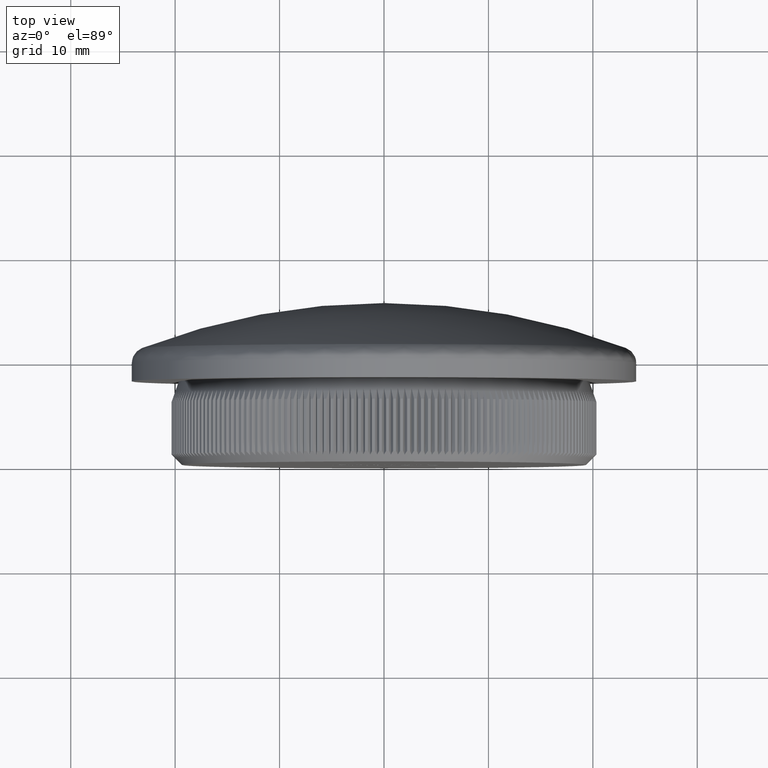
[diagram: clean part render]
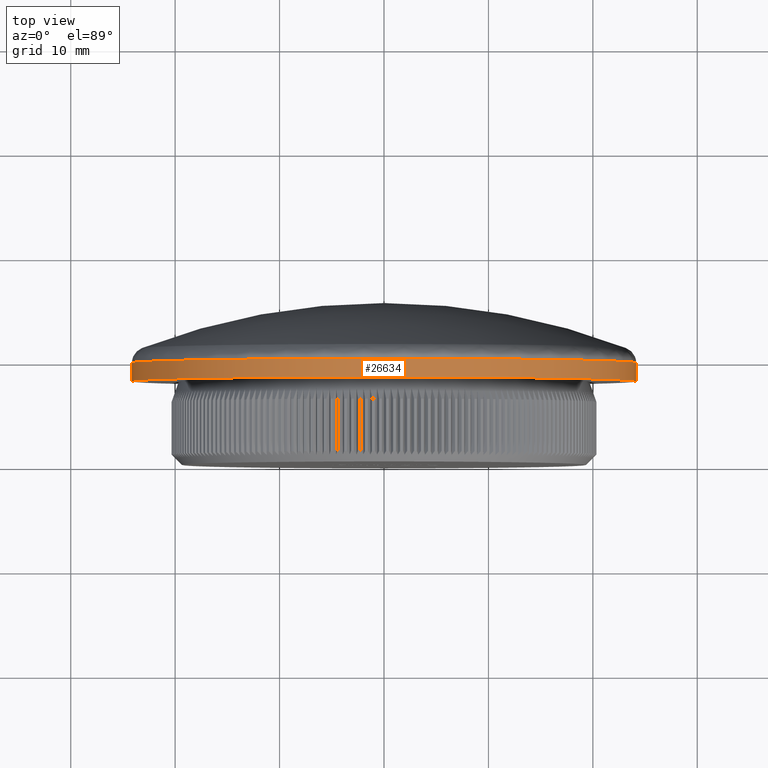
[diagram: same view with one face highlighted and labeled with its STEP entity id]
A machine part, top view. The second image highlights one B-rep face of the part: STEP entity #26634.
In plain terms, the highlighted cylindrical surface (bore or boss wall) has radius 24.15 mm, axis along (-0, -1, -0).
Its self-contained STEP definition (entity closure, byte-faithful):
#75 = CIRCLE ( 'NONE', #1512, 24.14999999999999900 ) ;
#1512 = AXIS2_PLACEMENT_3D ( 'NONE', #30666, #10439, #20549 ) ;
#3154 = DIRECTION ( 'NONE',  ( -0.0000000000000000000, -1.000000000000000000, -0.0000000000000000000 ) ) ;
#3593 = DIRECTION ( 'NONE',  ( 0.0000000000000000000, 0.0000000000000000000, -1.000000000000000000 ) ) ;
#3901 = EDGE_LOOP ( 'NONE', ( #30021 ) ) ;
#6959 = VERTEX_POINT ( 'NONE', #11163 ) ;
#10439 = DIRECTION ( 'NONE',  ( -0.0000000000000000000, -1.000000000000000000, -0.0000000000000000000 ) ) ;
#10743 = CIRCLE ( 'NONE', #17531, 24.15000000000000200 ) ;
#11163 = CARTESIAN_POINT ( 'NONE',  ( 0.0000000000000000000, 8.000000000000000000, -24.14999999999999900 ) ) ;
#12057 = FACE_OUTER_BOUND ( 'NONE', #3901, .T. ) ;
#15901 = CARTESIAN_POINT ( 'NONE',  ( 0.0000000000000000000, 9.780020886796899400, -24.15000000000000200 ) ) ;
#16206 = DIRECTION ( 'NONE',  ( 0.0000000000000000000, 0.0000000000000000000, -1.000000000000000000 ) ) ;
#16390 = FACE_OUTER_BOUND ( 'NONE', #23945, .T. ) ;
#16422 = VERTEX_POINT ( 'NONE', #15901 ) ;
#17531 = AXIS2_PLACEMENT_3D ( 'NONE', #20864, #3154, #3593 ) ;
#18630 = CARTESIAN_POINT ( 'NONE',  ( 0.0000000000000000000, 0.0000000000000000000, 0.0000000000000000000 ) ) ;
#20549 = DIRECTION ( 'NONE',  ( 0.0000000000000000000, 0.0000000000000000000, -1.000000000000000000 ) ) ;
#20864 = CARTESIAN_POINT ( 'NONE',  ( 0.0000000000000000000, 9.780020886796899400, 0.0000000000000000000 ) ) ;
#21380 = DIRECTION ( 'NONE',  ( -0.0000000000000000000, -1.000000000000000000, -0.0000000000000000000 ) ) ;
#23945 = EDGE_LOOP ( 'NONE', ( #27850 ) ) ;
#26634 = ADVANCED_FACE ( 'NONE', ( #12057, #16390 ), #26640, .T. ) ;
#26640 = CYLINDRICAL_SURFACE ( 'NONE', #26749, 24.15000000000000200 ) ;
#26749 = AXIS2_PLACEMENT_3D ( 'NONE', #18630, #21380, #16206 ) ;
#27850 = ORIENTED_EDGE ( 'NONE', *, *, #32096, .F. ) ;
#30021 = ORIENTED_EDGE ( 'NONE', *, *, #31268, .T. ) ;
#30666 = CARTESIAN_POINT ( 'NONE',  ( 0.0000000000000000000, 8.000000000000000000, 0.0000000000000000000 ) ) ;
#31268 = EDGE_CURVE ( 'NONE', #16422, #16422, #10743, .T. ) ;
#32096 = EDGE_CURVE ( 'NONE', #6959, #6959, #75, .T. ) ;